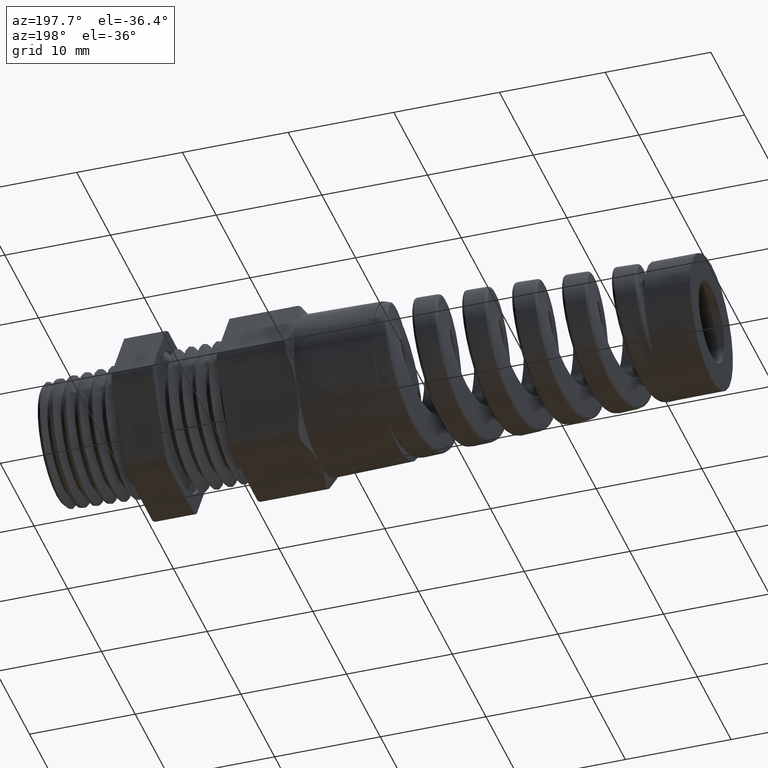
[diagram: clean part render]
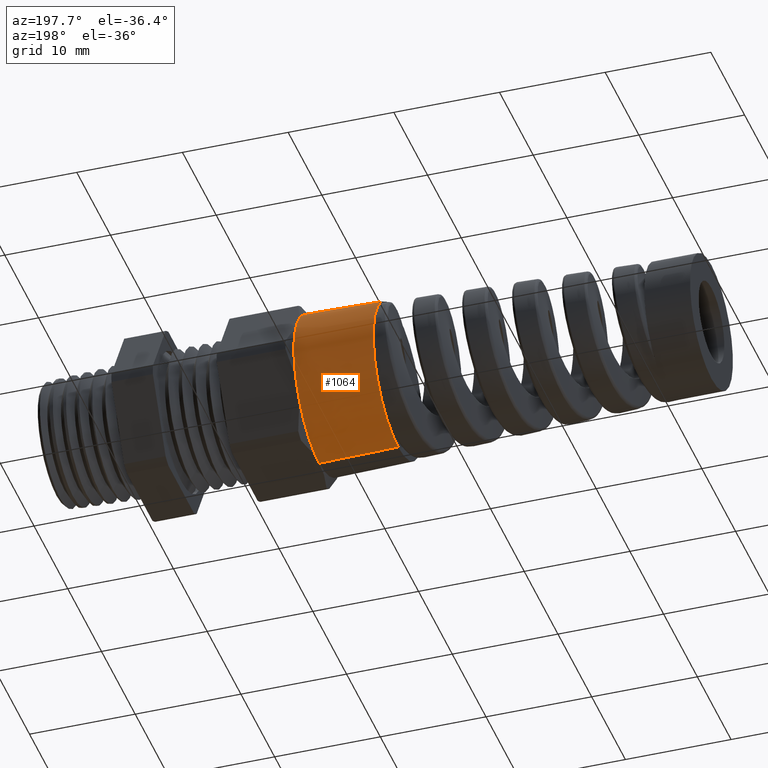
[diagram: same view with one face highlighted and labeled with its STEP entity id]
A machine part, auxiliary view. The second image highlights one B-rep face of the part: STEP entity #1064.
In plain terms, the highlighted conical surface has half-angle 1 deg.
Its self-contained STEP definition (entity closure, byte-faithful):
#1049 = EDGE_CURVE ( 'NONE', #1080, #1092, #5657, .T. ) ;
#1054 = ORIENTED_EDGE ( 'NONE', *, *, #4586, .T. ) ;
#1057 = ORIENTED_EDGE ( 'NONE', *, *, #1049, .F. ) ;
#1058 = ORIENTED_EDGE ( 'NONE', *, *, #4604, .T. ) ;
#1059 = ORIENTED_EDGE ( 'NONE', *, *, #9808, .T. ) ;
#1060 = ORIENTED_EDGE ( 'NONE', *, *, #1357, .F. ) ;
#1062 = EDGE_LOOP ( 'NONE', ( #1060, #1057, #1059, #1058, #1054, #1091 ) ) ;
#1064 = ADVANCED_FACE ( 'NONE', ( #5680 ), #5729, .T. ) ;
#1080 = VERTEX_POINT ( 'NONE', #6037 ) ;
#1091 = ORIENTED_EDGE ( 'NONE', *, *, #4596, .T. ) ;
#1092 = VERTEX_POINT ( 'NONE', #6029 ) ;
#1356 = VERTEX_POINT ( 'NONE', #6638 ) ;
#1357 = EDGE_CURVE ( 'NONE', #1092, #1356, #6637, .T. ) ;
#1614 = VERTEX_POINT ( 'NONE', #7198 ) ;
#4586 = EDGE_CURVE ( 'NONE', #1614, #9905, #8840, .T. ) ;
#4596 = EDGE_CURVE ( 'NONE', #9905, #1356, #8817, .T. ) ;
#4604 = EDGE_CURVE ( 'NONE', #9803, #1614, #8875, .T. ) ;
#5657 = CIRCLE ( 'NONE', #5698, 0.2898692582149995400 ) ;
#5677 = CARTESIAN_POINT ( 'NONE',  ( -0.6687499999999999600, 0.0000000000000000000, 0.0000000000000000000 ) ) ;
#5680 = FACE_OUTER_BOUND ( 'NONE', #1062, .T. ) ;
#5681 = DIRECTION ( 'NONE',  ( 0.0000000000000000000, 0.0000000000000000000, 1.000000000000000000 ) ) ;
#5696 = DIRECTION ( 'NONE',  ( -1.000000000000000000, 0.0000000000000000000, 0.0000000000000000000 ) ) ;
#5697 = CARTESIAN_POINT ( 'NONE',  ( -0.9626899999999999300, 0.0000000000000000000, 0.0000000000000000000 ) ) ;
#5698 = AXIS2_PLACEMENT_3D ( 'NONE', #5697, #5696, #5681 ) ;
#5726 = DIRECTION ( 'NONE',  ( 0.0000000000000000000, 0.0000000000000000000, 1.000000000000000000 ) ) ;
#5727 = DIRECTION ( 'NONE',  ( 1.000000000000000000, 0.0000000000000000000, 0.0000000000000000000 ) ) ;
#5728 = AXIS2_PLACEMENT_3D ( 'NONE', #5677, #5727, #5726 ) ;
#5729 = CONICAL_SURFACE ( 'NONE', #5728, 0.2949999999999997600, 0.01745329251994333400 ) ;
#6029 = CARTESIAN_POINT ( 'NONE',  ( -0.9626899999999999300, -3.581291324963428100E-017, -0.2898692582149995400 ) ) ;
#6037 = CARTESIAN_POINT ( 'NONE',  ( -0.9626899999999999300, 0.0000000000000000000, 0.2898692582149995400 ) ) ;
#6634 = DIRECTION ( 'NONE',  ( 0.9998476951563912700, -2.137303368083796300E-018, -0.01745240643728355000 ) ) ;
#6635 = VECTOR ( 'NONE', #6634, 39.37007874015748100 ) ;
#6636 = CARTESIAN_POINT ( 'NONE',  ( -0.6687499999999999600, -3.612708057484689500E-017, -0.2949999999999997600 ) ) ;
#6637 = LINE ( 'NONE', #6636, #6635 ) ;
#6638 = CARTESIAN_POINT ( 'NONE',  ( -0.6687500000000000700, 0.0000000000000000000, -0.2950000000000001500 ) ) ;
#7198 = CARTESIAN_POINT ( 'NONE',  ( -0.6687499999999999600, 0.2554774941164091300, 0.1475000000000000200 ) ) ;
#8774 = CARTESIAN_POINT ( 'NONE',  ( -0.6687500000000000700, 0.0000000000000000000, 0.0000000000000000000 ) ) ;
#8814 = DIRECTION ( 'NONE',  ( 0.0000000000000000000, 0.0000000000000000000, 1.000000000000000000 ) ) ;
#8815 = DIRECTION ( 'NONE',  ( -1.000000000000000000, 0.0000000000000000000, 0.0000000000000000000 ) ) ;
#8816 = AXIS2_PLACEMENT_3D ( 'NONE', #8821, #8815, #8814 ) ;
#8817 = CIRCLE ( 'NONE', #8816, 0.2949999999999997100 ) ;
#8821 = CARTESIAN_POINT ( 'NONE',  ( -0.6687500000000000700, 0.0000000000000000000, 0.0000000000000000000 ) ) ;
#8837 = DIRECTION ( 'NONE',  ( 0.0000000000000000000, 0.0000000000000000000, 1.000000000000000000 ) ) ;
#8838 = DIRECTION ( 'NONE',  ( -1.000000000000000000, 0.0000000000000000000, 0.0000000000000000000 ) ) ;
#8839 = AXIS2_PLACEMENT_3D ( 'NONE', #8774, #8838, #8837 ) ;
#8840 = CIRCLE ( 'NONE', #8839, 0.2949999999999997100 ) ;
#8871 = DIRECTION ( 'NONE',  ( 0.0000000000000000000, 0.0000000000000000000, 1.000000000000000000 ) ) ;
#8872 = DIRECTION ( 'NONE',  ( -1.000000000000000000, 0.0000000000000000000, 0.0000000000000000000 ) ) ;
#8873 = CARTESIAN_POINT ( 'NONE',  ( -0.6687500000000000700, 0.0000000000000000000, 0.0000000000000000000 ) ) ;
#8874 = AXIS2_PLACEMENT_3D ( 'NONE', #8873, #8872, #8871 ) ;
#8875 = CIRCLE ( 'NONE', #8874, 0.2949999999999997100 ) ;
#9653 = DIRECTION ( 'NONE',  ( 0.9998476951563912700, 0.0000000000000000000, 0.01745240643728355000 ) ) ;
#9654 = VECTOR ( 'NONE', #9653, 39.37007874015748100 ) ;
#9655 = CARTESIAN_POINT ( 'NONE',  ( -0.6687499999999999600, 0.0000000000000000000, 0.2949999999999997600 ) ) ;
#9656 = LINE ( 'NONE', #9655, #9654 ) ;
#9657 = CARTESIAN_POINT ( 'NONE',  ( -0.6687500000000000700, 0.0000000000000000000, 0.2949999999999997100 ) ) ;
#9688 = CARTESIAN_POINT ( 'NONE',  ( -0.6687500000000000700, 0.2554774941164095200, -0.1475000000000000200 ) ) ;
#9803 = VERTEX_POINT ( 'NONE', #9657 ) ;
#9808 = EDGE_CURVE ( 'NONE', #1080, #9803, #9656, .T. ) ;
#9905 = VERTEX_POINT ( 'NONE', #9688 ) ;